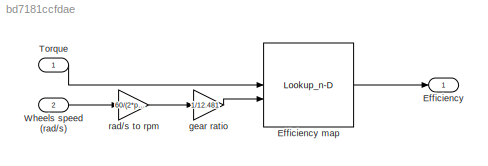
MODEL slx_bd7181ccfdae
KIND model
CONFIG AbsTol = auto
CONFIG EnableMultiTasking = off
CONFIG FixedStep = auto
CONFIG MaxStep = auto
CONFIG MinStep = auto
CONFIG RelTol = 1e-3
CONFIG SampleTimeConstraint = Unconstrained
CONFIG SolverName = VariableStepAuto
CONFIG StartTime = 0.0
CONFIG StopTime = 10.0
BLOCK [Outport] Efficiency
BLOCK [Lookup_n-D] Efficiency map
  BreakpointsForDimension1 = [0;5;10;15;20;25]
  BreakpointsForDimension2 = [2000;4000;6000;8000;10000;12000;14000;16000;18000;20000]
  InputPortMap = u0,u1
  InternalRulePriority = Speed
  RndMeth = Simplest
  Table = [98 98 97 97 96 95 94 93 92 91;96 97 97 96 96 95 95 95 94 94;92 95 96 96 96 96 96 96 96 95;89 93 94 96 96 97 97 97.5 97.5 97;87 90 93 95 96 97 97 97 98 98;83 88 91 94 95 95 96 96 97 97]
BLOCK [Inport] Torque
BLOCK [Inport] Wheels speed (rad//s)
  Port = 2
BLOCK [Gain] gear ratio
  Gain = 1/12.481
BLOCK [Gain] rad//s to rpm
  Gain = 60/(2*pi)
LINE Efficiency map:1 -> Efficiency:1
LINE Torque:1 -> Efficiency map:1
LINE Wheels speed (rad//s):1 -> rad//s to rpm:1
LINE gear ratio:1 -> Efficiency map:2
LINE rad//s to rpm:1 -> gear ratio:1
